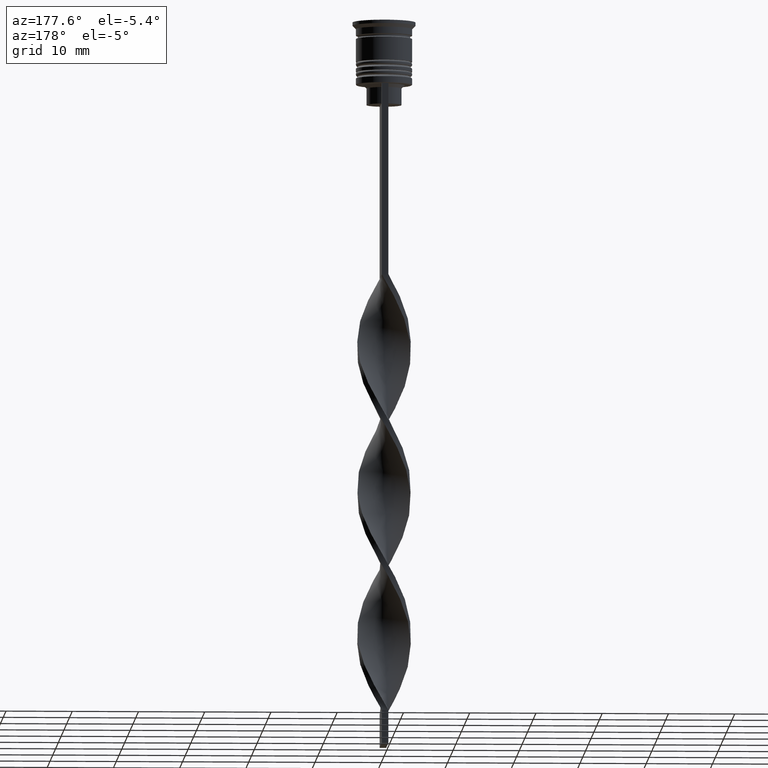
[diagram: clean part render]
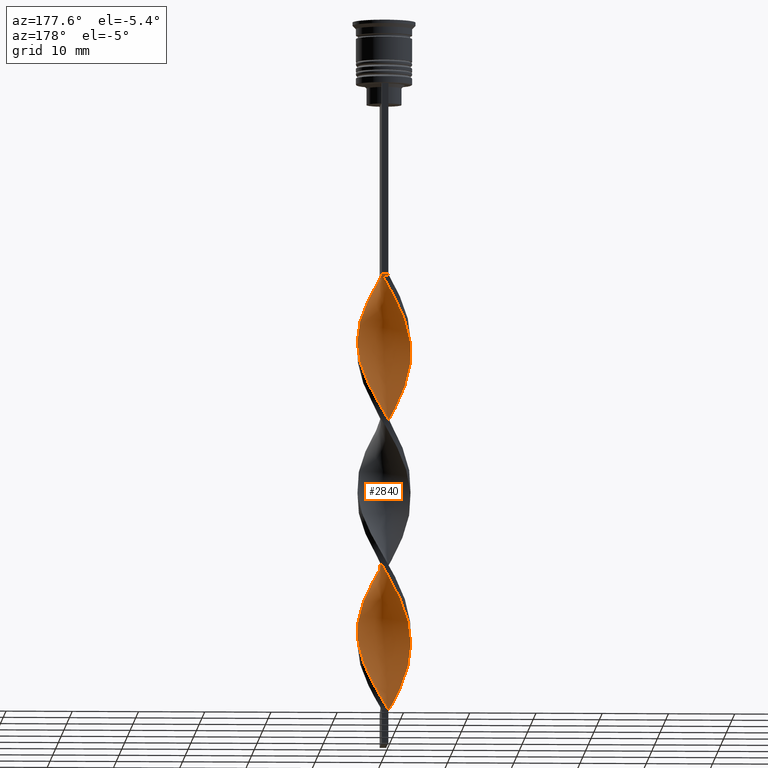
[diagram: same view with one face highlighted and labeled with its STEP entity id]
A machine part, auxiliary view. The second image highlights one B-rep face of the part: STEP entity #2840.
In plain terms, the highlighted face is a freeform B-spline surface patch.
Its self-contained STEP definition (entity closure, byte-faithful):
#7 = CARTESIAN_POINT ( 'NONE',  ( -3.575967836940203703, 1.860767053977795404, -67.26923076923077360 ) ) ;
#10 = CARTESIAN_POINT ( 'NONE',  ( -0.4717917484372087800, -4.003425101847986056, -80.80769230769230660 ) ) ;
#13 = CARTESIAN_POINT ( 'NONE',  ( 4.032828965577023972, 0.4752569063773701696, -73.19230769230769340 ) ) ;
#20 = CARTESIAN_POINT ( 'NONE',  ( 4.029378707462731413, 0.5036723384328412045, -49.50000000000000000 ) ) ;
#23 = CARTESIAN_POINT ( 'NONE',  ( -1.874433786711571459, -3.602232165184603652, -78.26923076923075939 ) ) ;
#37 = CARTESIAN_POINT ( 'NONE',  ( 4.032828965577023972, -0.4752569063773721680, -47.80769230769230660 ) ) ;
#40 = CARTESIAN_POINT ( 'NONE',  ( 3.791755605066377655, 1.453329977707796816, -95.19230769230769340 ) ) ;
#47 = CARTESIAN_POINT ( 'NONE',  ( -3.007903090209047559, 2.683750919871451757, -89.26923076923077360 ) ) ;
#54 = CARTESIAN_POINT ( 'NONE',  ( 3.575967836940203703, -1.860767053977795404, -45.26923076923076650 ) ) ;
#67 = CARTESIAN_POINT ( 'NONE',  ( 0.01431206711095556715, -4.060710991611130360, -81.65384615384616041 ) ) ;
#95 = CARTESIAN_POINT ( 'NONE',  ( -3.910567156264554534, 0.9785011580703200096, -48.65384615384615330 ) ) ;
#97 = CARTESIAN_POINT ( 'NONE',  ( -2.278235258877630010, 3.325604321804802588, -87.57692307692308020 ) ) ;
#128 = CARTESIAN_POINT ( 'NONE',  ( -3.350029810931577590, -2.294968160678091618, -54.57692307692308731 ) ) ;
#154 = CARTESIAN_POINT ( 'NONE',  ( 1.416164675348468904, -3.774185688634723590, -63.88461538461538680 ) ) ;
#155 = CARTESIAN_POINT ( 'NONE',  ( 0.9856879328890421066, -3.939289008388869640, -83.34615384615386802 ) ) ;
#162 = CARTESIAN_POINT ( 'NONE',  ( -3.333769449374405003, 2.318525361317902878, -90.11538461538462741 ) ) ;
#171 = CARTESIAN_POINT ( 'NONE',  ( -4.032828965577023084, -0.4752569063773717239, -51.19230769230768630 ) ) ;
#177 = CARTESIAN_POINT ( 'NONE',  ( 0.01431206711095789688, 4.060710991611130360, -83.34615384615386802 ) ) ;
#188 = CARTESIAN_POINT ( 'NONE',  ( 3.562762527220391107, -1.885927669512850846, -68.96153846153846700 ) ) ;
#198 = CARTESIAN_POINT ( 'NONE',  ( 0.9856879328890444381, 3.939289008388870084, -81.65384615384616041 ) ) ;
#215 = CARTESIAN_POINT ( 'NONE',  ( 1.899779198837471705, -3.588929866731989105, -41.03846153846154010 ) ) ;
#231 = CARTESIAN_POINT ( 'NONE',  ( 3.333769449374404559, -2.318525361317904654, -68.11538461538462741 ) ) ;
#252 = CARTESIAN_POINT ( 'NONE',  ( 0.4717917484372064485, 4.003425101847986056, -102.8076923076923208 ) ) ;
#256 = VERTEX_POINT ( 'NONE', #1911 ) ;
#260 = CARTESIAN_POINT ( 'NONE',  ( -3.333769449374404559, 2.318525361317903322, -46.11538461538462030 ) ) ;
#269 = CARTESIAN_POINT ( 'NONE',  ( 2.682036731043691002, 3.048976478424999303, -54.57692307692308731 ) ) ;
#272 = CARTESIAN_POINT ( 'NONE',  ( -1.416164675348472235, -3.774185688634722702, -79.11538461538461320 ) ) ;
#277 = CARTESIAN_POINT ( 'NONE',  ( 0.5000000000000000000, 4.000000000000000000, -82.50000000000000000 ) ) ;
#288 = CARTESIAN_POINT ( 'NONE',  ( -0.4999999999999994449, 4.000000000000000000, -60.50000000000000000 ) ) ;
#305 = CARTESIAN_POINT ( 'NONE',  ( 4.032828965577023972, -0.4752569063773721680, -91.80769230769230660 ) ) ;
#318 = CARTESIAN_POINT ( 'NONE',  ( 0.9578955639853689030, 3.946139212084843972, -57.96153846153846700 ) ) ;
#322 = CARTESIAN_POINT ( 'NONE',  ( 1.874433786711571015, 3.602232165184603652, -100.2692307692307878 ) ) ;
#333 = CARTESIAN_POINT ( 'NONE',  ( -1.416164675348472235, -3.774185688634722702, -79.11538461538461320 ) ) ;
#342 = FACE_OUTER_BOUND ( 'NONE', #2204, .T. ) ;
#362 = CARTESIAN_POINT ( 'NONE',  ( -3.007903090209047559, 2.683750919871451757, -45.26923076923076650 ) ) ;
#373 = CARTESIAN_POINT ( 'NONE',  ( 3.801905862948830706, -1.426565947277498525, -90.11538461538462741 ) ) ;
#387 = CARTESIAN_POINT ( 'NONE',  ( 2.703462203165886368, -3.029995166449922284, -86.73076923076922640 ) ) ;
#396 = CARTESIAN_POINT ( 'NONE',  ( -2.278235258877630010, 3.325604321804802588, -43.57692307692307310 ) ) ;
#405 = CARTESIAN_POINT ( 'NONE',  ( 3.917367414262926673, -0.9509114268274357906, -90.96153846153845279 ) ) ;
#412 = CARTESIAN_POINT ( 'NONE',  ( -0.5000000000000005551, -4.000000000000000000, -60.50000000000000000 ) ) ;
#427 = CARTESIAN_POINT ( 'NONE',  ( 4.031103836519877248, -0.01420771602773772055, -72.34615384615383959 ) ) ;
#428 = CARTESIAN_POINT ( 'NONE',  ( 4.031103836519878136, 0.01420771602773408804, -92.65384615384616041 ) ) ;
#433 = CARTESIAN_POINT ( 'NONE',  ( -3.917367414262927561, -0.9509114268274344584, -96.03846153846154721 ) ) ;
#440 = CARTESIAN_POINT ( 'NONE',  ( -3.350029810931577590, -2.294968160678091174, -54.57692307692308731 ) ) ;
#447 = CARTESIAN_POINT ( 'NONE',  ( 1.442733565863256961, -3.764109437560429150, -40.19230769230769340 ) ) ;
#454 = CARTESIAN_POINT ( 'NONE',  ( -0.5000000000000005551, -4.000000000000000000, -60.50000000000000000 ) ) ;
#461 = CARTESIAN_POINT ( 'NONE',  ( 3.350029810931576701, -2.294968160678092506, -44.42307692307691980 ) ) ;
#483 = CARTESIAN_POINT ( 'NONE',  ( -0.9578955639853675708, 3.946139212084844416, -85.03846153846153300 ) ) ;
#502 = CARTESIAN_POINT ( 'NONE',  ( -0.4717917484372050052, 4.003425101847986944, -84.19230769230769340 ) ) ;
#504 =( BOUNDED_SURFACE ( )  B_SPLINE_SURFACE ( 1, 2, ( 
 ( #631, #685, #1175, #3140, #2820, #3379, #396, #1501, #362, #2588, #2043, #2571, #95, #3155, #3392, #917, #2022, #2606, #3118, #128, #2337, #649, #1761, #955, #2059, #2893, #412, #1519, #3228, #1298, #1554, #2977, #1816, #1008, #2426, #231, #985, #2910, #738, #1330, #1862, #2444, #970, #2077, #1278, #1884, #2681, #2958, #2659, #1594, #3517, #198, #3252, #177, #502, #483, #2129, #1832, #2697, #1616, #2713, #162, #3171, #702, #2096, #2111, #2923, #1042, #433, #1538, #3208, #2412, #1259, #2643, #3459, #2375, #3194, #2394, #3479 ),
 ( #757, #722, #447, #215, #1311, #1847, #2938, #461, #1572, #3495, #2148, #1022, #779, #2466, #2497, #3273, #1684, #559, #1653, #1065, #3326, #1121, #1899, #815, #3558, #2229, #288, #2995, #3012, #593, #1389, #1630, #1972, #1410, #849, #1349, #1370, #1954, #1081, #3052, #2751, #2192, #576, #3291, #834, #544, #1916, #23, #272, #2482, #10, #1098, #797, #2783, #2211, #1423, #3309, #2173, #1938, #3035, #1668, #3066, #2767, #305, #3538, #2516, #1707, #40, #1136, #2246, #3341, #864, #2800, #322, #518, #2728, #252, #1202, #2852 ) ),
 .UNSPECIFIED., .F., .F., .F. ) 
 B_SPLINE_SURFACE_WITH_KNOTS ( ( 2, 2 ),
 ( 3, 2, 2, 2, 2, 2, 2, 2, 2, 2, 2, 2, 2, 2, 2, 2, 2, 2, 2, 2, 2, 2, 2, 2, 2, 2, 2, 2, 2, 2, 2, 2, 2, 2, 2, 2, 2, 2, 2, 3 ),
 ( 0.000000000000000000, 1.000000000000000000 ),
 ( 0.000000000000000000, 0.01923076923076923184, 0.03846153846153846367, 0.05769230769230769551, 0.07692307692307692735, 0.09615384615384615918, 0.1153846153846153910, 0.1346153846153846090, 0.1538461538461538547, 0.1730769230769230727, 0.1923076923076923184, 0.2115384615384615363, 0.2307692307692307820, 0.2500000000000000000, 0.2692307692307692180, 0.2884615384615384359, 0.3076923076923077094, 0.3269230769230769273, 0.3461538461538461453, 0.3653846153846153633, 0.3846153846153846367, 0.4038461538461538547, 0.4230769230769230727, 0.4423076923076922906, 0.4615384615384615641, 0.4807692307692307820, 0.5000000000000000000, 0.5192307692307692735, 0.5384615384615384359, 0.5576923076923077094, 0.5769230769230768718, 0.5961538461538461453, 0.6153846153846154188, 0.6346153846153845812, 0.6538461538461538547, 0.6730769230769231282, 0.6923076923076922906, 0.7115384615384615641, 0.7307692307692307265, 0.7500000000000000000 ),
 .UNSPECIFIED. ) 
 GEOMETRIC_REPRESENTATION_ITEM ( )  RATIONAL_B_SPLINE_SURFACE ( (
 ( 1.000000000000000000, 0.9927088740980539727, 1.000000000000000000, 0.9927088740980539727, 1.000000000000000000, 0.9927088740980539727, 1.000000000000000000, 0.9927088740980539727, 1.000000000000000000, 0.9927088740980539727, 1.000000000000000000, 0.9927088740980539727, 1.000000000000000000, 0.9927088740980539727, 1.000000000000000000, 0.9927088740980539727, 1.000000000000000000, 0.9927088740980539727, 1.000000000000000000, 0.9927088740980539727, 1.000000000000000000, 0.9927088740980539727, 1.000000000000000000, 0.9927088740980539727, 1.000000000000000000, 0.9927088740980539727, 1.000000000000000000, 0.9927088740980539727, 1.000000000000000000, 0.9927088740980539727, 1.000000000000000000, 0.9927088740980539727, 1.000000000000000000, 0.9927088740980539727, 1.000000000000000000, 0.9927088740980539727, 1.000000000000000000, 0.9927088740980539727, 1.000000000000000000, 0.9927088740980539727, 1.000000000000000000, 0.9927088740980539727, 1.000000000000000000, 0.9927088740980539727, 1.000000000000000000, 0.9927088740980539727, 1.000000000000000000, 0.9927088740980539727, 1.000000000000000000, 0.9927088740980539727, 1.000000000000000000, 0.9927088740980539727, 1.000000000000000000, 0.9927088740980539727, 1.000000000000000000, 0.9927088740980539727, 1.000000000000000000, 0.9927088740980539727, 1.000000000000000000, 0.9927088740980539727, 1.000000000000000000, 0.9927088740980539727, 1.000000000000000000, 0.9927088740980539727, 1.000000000000000000, 0.9927088740980539727, 1.000000000000000000, 0.9927088740980539727, 1.000000000000000000, 0.9927088740980539727, 1.000000000000000000, 0.9927088740980539727, 1.000000000000000000, 0.9927088740980539727, 1.000000000000000000, 0.9927088740980539727, 1.000000000000000000, 0.9927088740980539727, 1.000000000000000000),
 ( 1.000000000000000000, 0.9927088740980539727, 1.000000000000000000, 0.9927088740980539727, 1.000000000000000000, 0.9927088740980539727, 1.000000000000000000, 0.9927088740980539727, 1.000000000000000000, 0.9927088740980539727, 1.000000000000000000, 0.9927088740980539727, 1.000000000000000000, 0.9927088740980539727, 1.000000000000000000, 0.9927088740980539727, 1.000000000000000000, 0.9927088740980539727, 1.000000000000000000, 0.9927088740980539727, 1.000000000000000000, 0.9927088740980539727, 1.000000000000000000, 0.9927088740980539727, 1.000000000000000000, 0.9927088740980539727, 1.000000000000000000, 0.9927088740980539727, 1.000000000000000000, 0.9927088740980539727, 1.000000000000000000, 0.9927088740980539727, 1.000000000000000000, 0.9927088740980539727, 1.000000000000000000, 0.9927088740980539727, 1.000000000000000000, 0.9927088740980539727, 1.000000000000000000, 0.9927088740980539727, 1.000000000000000000, 0.9927088740980539727, 1.000000000000000000, 0.9927088740980539727, 1.000000000000000000, 0.9927088740980539727, 1.000000000000000000, 0.9927088740980539727, 1.000000000000000000, 0.9927088740980539727, 1.000000000000000000, 0.9927088740980539727, 1.000000000000000000, 0.9927088740980539727, 1.000000000000000000, 0.9927088740980539727, 1.000000000000000000, 0.9927088740980539727, 1.000000000000000000, 0.9927088740980539727, 1.000000000000000000, 0.9927088740980539727, 1.000000000000000000, 0.9927088740980539727, 1.000000000000000000, 0.9927088740980539727, 1.000000000000000000, 0.9927088740980539727, 1.000000000000000000, 0.9927088740980539727, 1.000000000000000000, 0.9927088740980539727, 1.000000000000000000, 0.9927088740980539727, 1.000000000000000000, 0.9927088740980539727, 1.000000000000000000, 0.9927088740980539727, 1.000000000000000000) ) ) 
 REPRESENTATION_ITEM ( '' )  SURFACE ( )  );
#518 = CARTESIAN_POINT ( 'NONE',  ( 1.416164675348469792, 3.774185688634723146, -101.1153846153846132 ) ) ;
#520 = EDGE_CURVE ( 'NONE', #2465, #523, #2496, .T. ) ;
#523 = VERTEX_POINT ( 'NONE', #2823 ) ;
#533 = VECTOR ( 'NONE', #2181, 1000.000000000000000 ) ;
#544 = CARTESIAN_POINT ( 'NONE',  ( -2.682036731043692335, -3.048976478424997527, -76.57692307692306599 ) ) ;
#551 = CARTESIAN_POINT ( 'NONE',  ( 1.899779198837473482, 3.588929866731988660, -79.96153846153846700 ) ) ;
#559 = CARTESIAN_POINT ( 'NONE',  ( 3.333769449374405447, 2.318525361317902433, -52.88461538461537970 ) ) ;
#573 = CARTESIAN_POINT ( 'NONE',  ( -3.910567156264555422, -0.9785011580703162348, -72.34615384615383959 ) ) ;
#576 = CARTESIAN_POINT ( 'NONE',  ( -3.562762527220391551, -1.885927669512849514, -74.03846153846153300 ) ) ;
#579 = CARTESIAN_POINT ( 'NONE',  ( -1.442733565863258516, -3.764109437560428262, -102.8076923076923208 ) ) ;
#589 = CARTESIAN_POINT ( 'NONE',  ( -2.703462203165885924, 3.029995166449922728, -64.73076923076922640 ) ) ;
#593 = CARTESIAN_POINT ( 'NONE',  ( -1.899779198837470373, 3.588929866731989549, -63.03846153846153300 ) ) ;
#608 = CARTESIAN_POINT ( 'NONE',  ( -1.874433786711571237, -3.602232165184603652, -78.26923076923077360 ) ) ;
#615 = CARTESIAN_POINT ( 'NONE',  ( -3.791755605066377655, 1.453329977707797260, -91.80769230769230660 ) ) ;
#631 = CARTESIAN_POINT ( 'NONE',  ( 0.5000000000000000000, 4.000000000000000000, -38.50000000000000000 ) ) ;
#633 = CARTESIAN_POINT ( 'NONE',  ( -2.703462203165886368, -3.029995166449921840, -100.2692307692307878 ) ) ;
#638 = CARTESIAN_POINT ( 'NONE',  ( 3.562762527220391551, 1.885927669512849070, -96.03846153846154721 ) ) ;
#649 = CARTESIAN_POINT ( 'NONE',  ( -2.703462203165886368, -3.029995166449921840, -56.26923076923076650 ) ) ;
#660 = CARTESIAN_POINT ( 'NONE',  ( 3.333769449374405447, 2.318525361317902878, -96.88461538461538680 ) ) ;
#685 = CARTESIAN_POINT ( 'NONE',  ( 0.01431206711095789688, 4.060710991611130360, -39.34615384615384670 ) ) ;
#702 = CARTESIAN_POINT ( 'NONE',  ( -3.791755605066377655, 1.453329977707797260, -91.80769230769230660 ) ) ;
#714 = CARTESIAN_POINT ( 'NONE',  ( -0.9578955639853675708, 3.946139212084843972, -41.03846153846154010 ) ) ;
#722 = CARTESIAN_POINT ( 'NONE',  ( 0.9856879328890421066, -3.939289008388870084, -39.34615384615384670 ) ) ;
#732 = CARTESIAN_POINT ( 'NONE',  ( -1.899779198837473038, -3.588929866731988660, -57.96153846153846700 ) ) ;
#738 = CARTESIAN_POINT ( 'NONE',  ( 3.910567156264554534, -0.9785011580703212308, -70.65384615384614619 ) ) ;
#739 = EDGE_CURVE ( 'NONE', #523, #2150, #2232, .T. ) ;
#757 = CARTESIAN_POINT ( 'NONE',  ( 0.5000000000000000000, -4.000000000000000000, -38.50000000000000000 ) ) ;
#779 = CARTESIAN_POINT ( 'NONE',  ( 4.031103836519878136, 0.01420771602773408804, -48.65384615384615330 ) ) ;
#797 = CARTESIAN_POINT ( 'NONE',  ( 0.5000000000000000000, -4.000000000000000000, -82.50000000000000000 ) ) ;
#802 = CARTESIAN_POINT ( 'NONE',  ( 3.026746007048732423, 2.662481663564005174, -77.42307692307693401 ) ) ;
#815 = CARTESIAN_POINT ( 'NONE',  ( 0.9578955639853687920, 3.946139212084844416, -57.96153846153846700 ) ) ;
#820 = CARTESIAN_POINT ( 'NONE',  ( 2.703462203165886812, 3.029995166449921840, -78.26923076923077360 ) ) ;
#831 = CARTESIAN_POINT ( 'NONE',  ( 1.899779198837471705, -3.588929866731989549, -41.03846153846154010 ) ) ;
#834 = CARTESIAN_POINT ( 'NONE',  ( -3.007903090209048891, -2.683750919871450868, -75.73076923076924061 ) ) ;
#840 = CARTESIAN_POINT ( 'NONE',  ( 0.4717917484372037285, -4.003425101847986944, -62.19230769230769340 ) ) ;
#846 = CARTESIAN_POINT ( 'NONE',  ( -3.026746007048730647, 2.662481663564007839, -65.57692307692308020 ) ) ;
#849 = CARTESIAN_POINT ( 'NONE',  ( -3.575967836940203703, 1.860767053977795404, -67.26923076923077360 ) ) ;
#855 = CARTESIAN_POINT ( 'NONE',  ( -0.4999999999999994449, 4.000000000000000000, -104.5000000000000142 ) ) ;
#861 = CARTESIAN_POINT ( 'NONE',  ( -2.278235258877631786, -3.325604321804800811, -77.42307692307693401 ) ) ;
#864 = CARTESIAN_POINT ( 'NONE',  ( 2.682036731043690558, 3.048976478424999303, -98.57692307692310862 ) ) ;
#876 = CARTESIAN_POINT ( 'NONE',  ( 1.416164675348469792, 3.774185688634723146, -57.11538461538461320 ) ) ;
#897 = CARTESIAN_POINT ( 'NONE',  ( 4.031103836519878136, 0.01420771602773408804, -48.65384615384615330 ) ) ;
#917 = CARTESIAN_POINT ( 'NONE',  ( -4.032828965577023084, -0.4752569063773717239, -51.19230769230768630 ) ) ;
#955 = CARTESIAN_POINT ( 'NONE',  ( -1.899779198837473038, -3.588929866731988216, -57.96153846153846700 ) ) ;
#970 = CARTESIAN_POINT ( 'NONE',  ( 3.917367414262927561, 0.9509114268274349024, -74.03846153846153300 ) ) ;
#978 = CARTESIAN_POINT ( 'NONE',  ( 3.350029810931578478, 2.294968160678088509, -76.57692307692306599 ) ) ;
#979 = CARTESIAN_POINT ( 'NONE',  ( 1.874433786711570793, 3.602232165184603652, -100.2692307692307878 ) ) ;
#985 = CARTESIAN_POINT ( 'NONE',  ( 3.562762527220391107, -1.885927669512850846, -68.96153846153846700 ) ) ;
#999 = CARTESIAN_POINT ( 'NONE',  ( 0.5000000000000000000, 4.000000000000000000, -38.50000000000000000 ) ) ;
#1008 = CARTESIAN_POINT ( 'NONE',  ( 2.682036731043688782, -3.048976478425001524, -66.42307692307694822 ) ) ;
#1022 = CARTESIAN_POINT ( 'NONE',  ( 4.032828965577023972, -0.4752569063773721680, -47.80769230769230660 ) ) ;
#1042 = CARTESIAN_POINT ( 'NONE',  ( -4.032828965577023084, -0.4752569063773717239, -95.19230769230769340 ) ) ;
#1065 = CARTESIAN_POINT ( 'NONE',  ( 2.682036731043690558, 3.048976478424999303, -54.57692307692308731 ) ) ;
#1081 = CARTESIAN_POINT ( 'NONE',  ( -4.031103836519878136, -0.01420771602773273322, -70.65384615384614619 ) ) ;
#1086 = CARTESIAN_POINT ( 'NONE',  ( -0.01431206711095876771, -4.060710991611130360, -61.34615384615383249 ) ) ;
#1098 = CARTESIAN_POINT ( 'NONE',  ( 0.01431206711095556715, -4.060710991611130360, -81.65384615384616041 ) ) ;
#1117 = CARTESIAN_POINT ( 'NONE',  ( 3.333769449374405447, 2.318525361317902878, -52.88461538461538680 ) ) ;
#1121 = CARTESIAN_POINT ( 'NONE',  ( 1.874433786711571015, 3.602232165184603652, -56.26923076923076650 ) ) ;
#1127 = CARTESIAN_POINT ( 'NONE',  ( -1.874433786711570349, 3.602232165184604096, -86.73076923076922640 ) ) ;
#1133 = CARTESIAN_POINT ( 'NONE',  ( -3.917367414262926673, 0.9509114268274362347, -68.96153846153846700 ) ) ;
#1136 = CARTESIAN_POINT ( 'NONE',  ( 3.562762527220391551, 1.885927669512849070, -96.03846153846154721 ) ) ;
#1142 = CARTESIAN_POINT ( 'NONE',  ( -2.682036731043690114, 3.048976478425000636, -88.42307692307691980 ) ) ;
#1149 = CARTESIAN_POINT ( 'NONE',  ( -1.442733565863255851, 3.764109437560429594, -62.19230769230769340 ) ) ;
#1159 = EDGE_CURVE ( 'NONE', #256, #2150, #1261, .T. ) ;
#1166 = CARTESIAN_POINT ( 'NONE',  ( 3.026746007048731091, -2.662481663564006951, -43.57692307692307310 ) ) ;
#1175 = CARTESIAN_POINT ( 'NONE',  ( -0.4717917484372050052, 4.003425101847986944, -40.19230769230769340 ) ) ;
#1191 = CARTESIAN_POINT ( 'NONE',  ( -4.029378707462731413, 0.5036723384328416486, -93.50000000000000000 ) ) ;
#1198 = CARTESIAN_POINT ( 'NONE',  ( 1.442733565863256961, -3.764109437560429150, -84.19230769230769340 ) ) ;
#1202 = CARTESIAN_POINT ( 'NONE',  ( -0.01431206711095605461, 4.060710991611130360, -103.6538461538461604 ) ) ;
#1218 = CARTESIAN_POINT ( 'NONE',  ( 3.350029810931576701, -2.294968160678092506, -88.42307692307691980 ) ) ;
#1251 = CARTESIAN_POINT ( 'NONE',  ( 3.917367414262927561, 0.9509114268274349024, -74.03846153846153300 ) ) ;
#1252 = CARTESIAN_POINT ( 'NONE',  ( 2.278235258877631342, 3.325604321804801256, -99.42307692307691980 ) ) ;
#1259 = CARTESIAN_POINT ( 'NONE',  ( -3.026746007048731979, -2.662481663564005618, -99.42307692307691980 ) ) ;
#1261 =( BOUNDED_CURVE ( )  B_SPLINE_CURVE ( 2, ( #3305, #2765, #2813, #831, #1701, #2748, #1166, #2527, #54, #1386, #2513, #37, #897, #20, #1718, #3323, #2278, #1117, #3064, #269, #2258, #1936, #876, #318, #2000, #1421, #1366, #1650, #1149, #1968, #2226, #589, #846, #2480, #7, #1952, #1133, #3049, #1986, #3081, #573, #3354, #1681, #2780, #2243, #3339, #861, #608, #333, #1437, #2541, #67, #2829, #155, #1198, #2617, #3111, #387, #2032, #1218, #2326, #373, #405, #2637, #428, #2293, #1533, #3454, #638, #660, #1477, #3165, #1252, #979, #3135, #3420, #3385, #2563, #2015 ),
 .UNSPECIFIED., .F., .T. ) 
 B_SPLINE_CURVE_WITH_KNOTS ( ( 3, 2, 2, 2, 2, 2, 2, 2, 2, 2, 2, 2, 2, 2, 2, 2, 2, 2, 2, 2, 2, 2, 2, 2, 2, 2, 2, 2, 2, 2, 2, 2, 2, 2, 2, 2, 2, 2, 2, 3 ),
 ( 0.000000000000000000, 0.01923076923076923184, 0.03846153846153846367, 0.05769230769230768857, 0.07692307692307692735, 0.09615384615384615918, 0.1153846153846153771, 0.1346153846153846090, 0.1538461538461538547, 0.1730769230769230449, 0.1923076923076923184, 0.2115384615384615363, 0.2307692307692307543, 0.2500000000000000000, 0.2692307692307692180, 0.2884615384615384359, 0.3076923076923077094, 0.3269230769230769273, 0.3461538461538460898, 0.3653846153846153633, 0.3846153846153846367, 0.4038461538461539102, 0.4230769230769230727, 0.4423076923076922906, 0.4615384615384615086, 0.4807692307692307820, 0.5000000000000000000, 0.5192307692307692735, 0.5384615384615384359, 0.5576923076923077094, 0.5769230769230768718, 0.5961538461538461453, 0.6153846153846154188, 0.6346153846153845812, 0.6538461538461538547, 0.6730769230769230171, 0.6923076923076921796, 0.7115384615384615641, 0.7307692307692307265, 0.7500000000000000000 ),
 .UNSPECIFIED. ) 
 CURVE ( )  GEOMETRIC_REPRESENTATION_ITEM ( )  RATIONAL_B_SPLINE_CURVE ( ( 1.000000000000000000, 0.9927088740980539727, 1.000000000000000000, 0.9927088740980539727, 1.000000000000000000, 0.9927088740980539727, 1.000000000000000000, 0.9927088740980539727, 1.000000000000000000, 0.9927088740980539727, 1.000000000000000000, 0.9927088740980539727, 1.000000000000000000, 0.9927088740980539727, 1.000000000000000000, 0.9927088740980539727, 1.000000000000000000, 0.9927088740980539727, 1.000000000000000000, 0.9927088740980539727, 1.000000000000000000, 0.9927088740980539727, 1.000000000000000000, 0.9927088740980539727, 1.000000000000000000, 0.9927088740980539727, 1.000000000000000000, 0.9927088740980539727, 1.000000000000000000, 0.9927088740980539727, 1.000000000000000000, 0.9927088740980539727, 1.000000000000000000, 0.9927088740980539727, 1.000000000000000000, 0.9927088740980539727, 1.000000000000000000, 0.9927088740980539727, 1.000000000000000000, 0.9927088740980539727, 1.000000000000000000, 0.9927088740980539727, 1.000000000000000000, 0.9927088740980539727, 1.000000000000000000, 0.9927088740980539727, 1.000000000000000000, 0.9927088740980539727, 1.000000000000000000, 0.9927088740980539727, 1.000000000000000000, 0.9927088740980539727, 1.000000000000000000, 0.9927088740980539727, 1.000000000000000000, 0.9927088740980539727, 1.000000000000000000, 0.9927088740980539727, 1.000000000000000000, 0.9927088740980539727, 1.000000000000000000, 0.9927088740980539727, 1.000000000000000000, 0.9927088740980539727, 1.000000000000000000, 0.9927088740980539727, 1.000000000000000000, 0.9927088740980539727, 1.000000000000000000, 0.9927088740980539727, 1.000000000000000000, 0.9927088740980539727, 1.000000000000000000, 0.9927088740980539727, 1.000000000000000000, 0.9927088740980539727, 1.000000000000000000, 0.9927088740980539727, 1.000000000000000000 ) ) 
 REPRESENTATION_ITEM ( '' )  );
#1278 = CARTESIAN_POINT ( 'NONE',  ( 3.575967836940204148, 1.860767053977794072, -75.73076923076924061 ) ) ;
#1298 = CARTESIAN_POINT ( 'NONE',  ( 0.9578955639853662385, -3.946139212084844416, -63.03846153846153300 ) ) ;
#1311 = CARTESIAN_POINT ( 'NONE',  ( 2.301620701001678704, -3.309462516590955250, -41.88461538461537970 ) ) ;
#1330 = CARTESIAN_POINT ( 'NONE',  ( 4.029378707462731413, -0.5036723384328422037, -71.50000000000000000 ) ) ;
#1337 = CARTESIAN_POINT ( 'NONE',  ( -3.917367414262927561, -0.9509114268274344584, -52.03846153846154010 ) ) ;
#1340 = LINE ( 'NONE', #1929, #533 ) ;
#1349 = CARTESIAN_POINT ( 'NONE',  ( -3.801905862948829373, 1.426565947277500745, -68.11538461538462741 ) ) ;
#1356 = CARTESIAN_POINT ( 'NONE',  ( -3.791755605066377655, 1.453329977707797260, -47.80769230769230660 ) ) ;
#1366 = CARTESIAN_POINT ( 'NONE',  ( -0.4999999999999994449, 4.000000000000000000, -60.50000000000000000 ) ) ;
#1370 = CARTESIAN_POINT ( 'NONE',  ( -3.917367414262926673, 0.9509114268274362347, -68.96153846153846700 ) ) ;
#1377 = CARTESIAN_POINT ( 'NONE',  ( 4.029378707462731413, -0.5036723384328422037, -71.50000000000001421 ) ) ;
#1386 = CARTESIAN_POINT ( 'NONE',  ( 3.801905862948830706, -1.426565947277498525, -46.11538461538462030 ) ) ;
#1389 = CARTESIAN_POINT ( 'NONE',  ( -2.301620701001678704, 3.309462516590955250, -63.88461538461538680 ) ) ;
#1410 = CARTESIAN_POINT ( 'NONE',  ( -3.350029810931575813, 2.294968160678093394, -66.42307692307694822 ) ) ;
#1413 = CARTESIAN_POINT ( 'NONE',  ( -3.026746007048731979, -2.662481663564005618, -99.42307692307691980 ) ) ;
#1421 = CARTESIAN_POINT ( 'NONE',  ( -0.01431206711095605461, 4.060710991611130360, -59.65384615384615330 ) ) ;
#1423 = CARTESIAN_POINT ( 'NONE',  ( 1.899779198837471705, -3.588929866731989105, -85.03846153846153300 ) ) ;
#1429 = CARTESIAN_POINT ( 'NONE',  ( -3.801905862948830261, -1.426565947277498081, -96.88461538461538680 ) ) ;
#1437 = CARTESIAN_POINT ( 'NONE',  ( -0.9578955639853693471, -3.946139212084843972, -79.96153846153846700 ) ) ;
#1446 = CARTESIAN_POINT ( 'NONE',  ( -4.031103836519878136, 0.01420771602773549663, -94.34615384615385381 ) ) ;
#1477 = CARTESIAN_POINT ( 'NONE',  ( 3.007903090209048003, 2.683750919871450868, -97.73076923076922640 ) ) ;
#1495 = ORIENTED_EDGE ( 'NONE', *, *, #739, .F. ) ;
#1501 = CARTESIAN_POINT ( 'NONE',  ( -2.682036731043689670, 3.048976478425000636, -44.42307692307691980 ) ) ;
#1519 = CARTESIAN_POINT ( 'NONE',  ( -0.01431206711095876771, -4.060710991611130360, -61.34615384615383959 ) ) ;
#1525 = ORIENTED_EDGE ( 'NONE', *, *, #520, .F. ) ;
#1533 = CARTESIAN_POINT ( 'NONE',  ( 3.910567156264554534, 0.9785011580703186773, -94.34615384615385381 ) ) ;
#1538 = CARTESIAN_POINT ( 'NONE',  ( -3.801905862948830261, -1.426565947277498081, -96.88461538461538680 ) ) ;
#1547 = CARTESIAN_POINT ( 'NONE',  ( -3.562762527220391107, 1.885927669512850402, -46.96153846153845990 ) ) ;
#1554 = CARTESIAN_POINT ( 'NONE',  ( 1.416164675348468904, -3.774185688634723590, -63.88461538461538680 ) ) ;
#1562 = CARTESIAN_POINT ( 'NONE',  ( 2.278235258877629565, -3.325604321804802588, -65.57692307692308020 ) ) ;
#1572 = CARTESIAN_POINT ( 'NONE',  ( 3.575967836940203703, -1.860767053977795404, -45.26923076923076650 ) ) ;
#1594 = CARTESIAN_POINT ( 'NONE',  ( 1.899779198837473482, 3.588929866731988216, -79.96153846153846700 ) ) ;
#1616 = CARTESIAN_POINT ( 'NONE',  ( -2.682036731043689670, 3.048976478425000636, -88.42307692307693401 ) ) ;
#1630 = CARTESIAN_POINT ( 'NONE',  ( -2.703462203165885924, 3.029995166449922728, -64.73076923076921219 ) ) ;
#1638 = CARTESIAN_POINT ( 'NONE',  ( -0.4717917484372050052, 4.003425101847986944, -40.19230769230769340 ) ) ;
#1650 = CARTESIAN_POINT ( 'NONE',  ( -0.9856879328890412184, 3.939289008388869640, -61.34615384615383249 ) ) ;
#1653 = CARTESIAN_POINT ( 'NONE',  ( 3.007903090209048003, 2.683750919871450868, -53.73076923076923350 ) ) ;
#1658 = CARTESIAN_POINT ( 'NONE',  ( 1.442733565863260736, 3.764109437560427818, -80.80769230769230660 ) ) ;
#1668 = CARTESIAN_POINT ( 'NONE',  ( 3.575967836940203703, -1.860767053977795404, -89.26923076923077360 ) ) ;
#1674 = CARTESIAN_POINT ( 'NONE',  ( -3.910567156264554534, 0.9785011580703200096, -92.65384615384616041 ) ) ;
#1681 = CARTESIAN_POINT ( 'NONE',  ( -3.562762527220391551, -1.885927669512849514, -74.03846153846153300 ) ) ;
#1684 = CARTESIAN_POINT ( 'NONE',  ( 3.562762527220391551, 1.885927669512849070, -52.03846153846154010 ) ) ;
#1701 = CARTESIAN_POINT ( 'NONE',  ( 2.301620701001678704, -3.309462516590955250, -41.88461538461537970 ) ) ;
#1707 = CARTESIAN_POINT ( 'NONE',  ( 3.910567156264554534, 0.9785011580703186773, -94.34615384615385381 ) ) ;
#1718 = CARTESIAN_POINT ( 'NONE',  ( 3.910567156264554534, 0.9785011580703186773, -50.34615384615384670 ) ) ;
#1743 = CARTESIAN_POINT ( 'NONE',  ( -3.333769449374404559, 2.318525361317903322, -90.11538461538462741 ) ) ;
#1761 = CARTESIAN_POINT ( 'NONE',  ( -2.301620701001679148, -3.309462516590954806, -57.11538461538461320 ) ) ;
#1769 = CARTESIAN_POINT ( 'NONE',  ( 0.5000000000000000000, 4.000000000000000000, -38.50000000000000000 ) ) ;
#1816 = CARTESIAN_POINT ( 'NONE',  ( 2.278235258877629565, -3.325604321804802588, -65.57692307692308020 ) ) ;
#1825 = CARTESIAN_POINT ( 'NONE',  ( -2.682036731043690114, 3.048976478425000636, -44.42307692307692690 ) ) ;
#1832 = CARTESIAN_POINT ( 'NONE',  ( -1.874433786711570571, 3.602232165184604096, -86.73076923076922640 ) ) ;
#1840 = CARTESIAN_POINT ( 'NONE',  ( -3.007903090209047559, 2.683750919871451757, -45.26923076923076650 ) ) ;
#1847 = CARTESIAN_POINT ( 'NONE',  ( 2.703462203165886368, -3.029995166449922284, -42.73076923076923350 ) ) ;
#1862 = CARTESIAN_POINT ( 'NONE',  ( 4.031103836519877248, -0.01420771602773772055, -72.34615384615383959 ) ) ;
#1884 = CARTESIAN_POINT ( 'NONE',  ( 3.350029810931578478, 2.294968160678088953, -76.57692307692306599 ) ) ;
#1899 = CARTESIAN_POINT ( 'NONE',  ( 1.416164675348469792, 3.774185688634723146, -57.11538461538461320 ) ) ;
#1911 = CARTESIAN_POINT ( 'NONE',  ( 0.5000000000000000000, -4.000000000000000000, -38.50000000000000000 ) ) ;
#1916 = CARTESIAN_POINT ( 'NONE',  ( -2.278235258877631786, -3.325604321804800811, -77.42307692307693401 ) ) ;
#1926 = CARTESIAN_POINT ( 'NONE',  ( -1.874433786711570349, 3.602232165184604096, -42.73076923076923350 ) ) ;
#1929 = CARTESIAN_POINT ( 'NONE',  ( 0.5000000000000000000, -4.000000000000000000, -38.50000000000000000 ) ) ;
#1936 = CARTESIAN_POINT ( 'NONE',  ( 1.874433786711570793, 3.602232165184603652, -56.26923076923076650 ) ) ;
#1938 = CARTESIAN_POINT ( 'NONE',  ( 3.026746007048731091, -2.662481663564006951, -87.57692307692308020 ) ) ;
#1945 = CARTESIAN_POINT ( 'NONE',  ( 1.874433786711570127, -3.602232165184604540, -64.73076923076922640 ) ) ;
#1952 = CARTESIAN_POINT ( 'NONE',  ( -3.801905862948829373, 1.426565947277500745, -68.11538461538461320 ) ) ;
#1954 = CARTESIAN_POINT ( 'NONE',  ( -4.032828965577023084, 0.4752569063773718350, -69.80769230769230660 ) ) ;
#1960 = CARTESIAN_POINT ( 'NONE',  ( -1.416164675348469126, 3.774185688634723590, -85.88461538461538680 ) ) ;
#1968 = CARTESIAN_POINT ( 'NONE',  ( -1.899779198837470373, 3.588929866731989993, -63.03846153846154010 ) ) ;
#1972 = CARTESIAN_POINT ( 'NONE',  ( -3.026746007048730647, 2.662481663564007839, -65.57692307692308020 ) ) ;
#1986 = CARTESIAN_POINT ( 'NONE',  ( -4.031103836519878136, -0.01420771602773273322, -70.65384615384614619 ) ) ;
#1994 = CARTESIAN_POINT ( 'NONE',  ( -0.9856879328890441050, -3.939289008388869640, -103.6538461538461462 ) ) ;
#2000 = CARTESIAN_POINT ( 'NONE',  ( 0.4717917484372064485, 4.003425101847986056, -58.80769230769231370 ) ) ;
#2015 = CARTESIAN_POINT ( 'NONE',  ( -0.4999999999999994449, 4.000000000000000000, -104.5000000000000142 ) ) ;
#2022 = CARTESIAN_POINT ( 'NONE',  ( -3.917367414262927561, -0.9509114268274344584, -52.03846153846154010 ) ) ;
#2032 = CARTESIAN_POINT ( 'NONE',  ( 3.026746007048731091, -2.662481663564006951, -87.57692307692308020 ) ) ;
#2043 = CARTESIAN_POINT ( 'NONE',  ( -3.562762527220391107, 1.885927669512850402, -46.96153846153845990 ) ) ;
#2059 = CARTESIAN_POINT ( 'NONE',  ( -1.442733565863258516, -3.764109437560428262, -58.80769230769231370 ) ) ;
#2077 = CARTESIAN_POINT ( 'NONE',  ( 3.801905862948831150, 1.426565947277496083, -74.88461538461538680 ) ) ;
#2096 = CARTESIAN_POINT ( 'NONE',  ( -3.910567156264554534, 0.9785011580703200096, -92.65384615384616041 ) ) ;
#2103 = CARTESIAN_POINT ( 'NONE',  ( -3.910567156264554534, 0.9785011580703200096, -48.65384615384615330 ) ) ;
#2111 = CARTESIAN_POINT ( 'NONE',  ( -4.029378707462731413, 0.5036723384328416486, -93.49999999999998579 ) ) ;
#2129 = CARTESIAN_POINT ( 'NONE',  ( -1.416164675348469126, 3.774185688634723590, -85.88461538461538680 ) ) ;
#2148 = CARTESIAN_POINT ( 'NONE',  ( 3.917367414262926673, -0.9509114268274357906, -46.96153846153845990 ) ) ;
#2150 = VERTEX_POINT ( 'NONE', #855 ) ;
#2173 = CARTESIAN_POINT ( 'NONE',  ( 2.703462203165886368, -3.029995166449922284, -86.73076923076922640 ) ) ;
#2179 = CARTESIAN_POINT ( 'NONE',  ( 3.791755605066377655, -1.453329977707796816, -69.80769230769230660 ) ) ;
#2181 = DIRECTION ( 'NONE',  ( 0.000000000000000000, 1.000000000000000000, 0.000000000000000000 ) ) ;
#2192 = CARTESIAN_POINT ( 'NONE',  ( -3.791755605066378987, -1.453329977707795484, -73.19230769230770761 ) ) ;
#2198 = ORIENTED_EDGE ( 'NONE', *, *, #3084, .F. ) ;
#2200 = CARTESIAN_POINT ( 'NONE',  ( 0.9578955639853662385, -3.946139212084843972, -63.03846153846154010 ) ) ;
#2204 = EDGE_LOOP ( 'NONE', ( #2198, #3390, #1495, #1525 ) ) ;
#2211 = CARTESIAN_POINT ( 'NONE',  ( 1.442733565863256961, -3.764109437560429150, -84.19230769230769340 ) ) ;
#2217 = CARTESIAN_POINT ( 'NONE',  ( 0.01431206711095789862, 4.060710991611130360, -39.34615384615384670 ) ) ;
#2226 = CARTESIAN_POINT ( 'NONE',  ( -2.301620701001678704, 3.309462516590955250, -63.88461538461538680 ) ) ;
#2229 = CARTESIAN_POINT ( 'NONE',  ( -0.01431206711095605461, 4.060710991611130360, -59.65384615384615330 ) ) ;
#2232 = B_SPLINE_CURVE_WITH_KNOTS ( 'NONE', 3,
 ( #2248, #2546, #3343, #3070 ),
 .UNSPECIFIED., .F., .F.,
 ( 4, 4 ),
 ( 0.000000000000000000, 1.000000000000000000 ),
 .UNSPECIFIED. ) ;
#2237 = CARTESIAN_POINT ( 'NONE',  ( -3.562762527220391107, 1.885927669512850402, -90.96153846153845279 ) ) ;
#2243 = CARTESIAN_POINT ( 'NONE',  ( -3.007903090209048891, -2.683750919871450868, -75.73076923076924061 ) ) ;
#2246 = CARTESIAN_POINT ( 'NONE',  ( 3.333769449374405447, 2.318525361317902433, -96.88461538461538680 ) ) ;
#2248 = CARTESIAN_POINT ( 'NONE',  ( -0.5000000000000005551, -4.000000000000000000, -104.5000000000000142 ) ) ;
#2251 = CARTESIAN_POINT ( 'NONE',  ( -2.301620701001679148, -3.309462516590954806, -101.1153846153846132 ) ) ;
#2258 = CARTESIAN_POINT ( 'NONE',  ( 2.278235258877631342, 3.325604321804801256, -55.42307692307691980 ) ) ;
#2266 = CARTESIAN_POINT ( 'NONE',  ( 0.01431206711095789862, 4.060710991611130360, -83.34615384615386802 ) ) ;
#2278 = CARTESIAN_POINT ( 'NONE',  ( 3.562762527220391551, 1.885927669512849070, -52.03846153846154010 ) ) ;
#2293 = CARTESIAN_POINT ( 'NONE',  ( 4.029378707462731413, 0.5036723384328412045, -93.50000000000000000 ) ) ;
#2300 = CARTESIAN_POINT ( 'NONE',  ( -1.899779198837473038, -3.588929866731988660, -101.9615384615384670 ) ) ;
#2326 = CARTESIAN_POINT ( 'NONE',  ( 3.575967836940203703, -1.860767053977795404, -89.26923076923077360 ) ) ;
#2337 = CARTESIAN_POINT ( 'NONE',  ( -3.026746007048731979, -2.662481663564005618, -55.42307692307691980 ) ) ;
#2367 = CARTESIAN_POINT ( 'NONE',  ( -3.026746007048731979, -2.662481663564005618, -55.42307692307691980 ) ) ;
#2375 = CARTESIAN_POINT ( 'NONE',  ( -1.899779198837473038, -3.588929866731988216, -101.9615384615384670 ) ) ;
#2383 = CARTESIAN_POINT ( 'NONE',  ( -2.301620701001679148, -3.309462516590954806, -57.11538461538461320 ) ) ;
#2394 = CARTESIAN_POINT ( 'NONE',  ( -0.9856879328890439940, -3.939289008388870084, -103.6538461538461604 ) ) ;
#2412 = CARTESIAN_POINT ( 'NONE',  ( -3.350029810931577590, -2.294968160678091618, -98.57692307692310862 ) ) ;
#2426 = CARTESIAN_POINT ( 'NONE',  ( 3.007903090209047559, -2.683750919871451757, -67.26923076923077360 ) ) ;
#2444 = CARTESIAN_POINT ( 'NONE',  ( 4.032828965577023972, 0.4752569063773701696, -73.19230769230770761 ) ) ;
#2455 = CARTESIAN_POINT ( 'NONE',  ( 3.333769449374404115, -2.318525361317905098, -68.11538461538461320 ) ) ;
#2465 = VERTEX_POINT ( 'NONE', #1769 ) ;
#2466 = CARTESIAN_POINT ( 'NONE',  ( 4.029378707462731413, 0.5036723384328412045, -49.50000000000000000 ) ) ;
#2473 = CARTESIAN_POINT ( 'NONE',  ( -4.031103836519878136, 0.01420771602773549663, -50.34615384615384670 ) ) ;
#2480 = CARTESIAN_POINT ( 'NONE',  ( -3.350029810931575813, 2.294968160678093394, -66.42307692307693401 ) ) ;
#2482 = CARTESIAN_POINT ( 'NONE',  ( -0.9578955639853692361, -3.946139212084844416, -79.96153846153846700 ) ) ;
#2486 = CARTESIAN_POINT ( 'NONE',  ( -1.416164675348469126, 3.774185688634723590, -41.88461538461537970 ) ) ;
#2496 =( BOUNDED_CURVE ( )  B_SPLINE_CURVE ( 2, ( #999, #2217, #1638, #714, #2486, #1926, #2740, #1825, #1840, #260, #1547, #1356, #2103, #2652, #2473, #171, #1337, #3201, #3317, #440, #2367, #2916, #2383, #732, #2931, #3562, #454, #1086, #840, #2200, #154, #1945, #1562, #3297, #2669, #2455, #188, #2179, #3279, #1377, #427, #13, #1251, #3548, #3453, #978, #802, #820, #3023, #551, #1658, #2757, #277, #2266, #3330, #2505, #1960, #1127, #97, #1142, #47, #1743, #2237, #615, #1674, #1191, #1446, #2550, #3057, #1429, #2534, #3394, #1413, #633, #2251, #2300, #579, #1994, #2772 ),
 .UNSPECIFIED., .F., .T. ) 
 B_SPLINE_CURVE_WITH_KNOTS ( ( 3, 2, 2, 2, 2, 2, 2, 2, 2, 2, 2, 2, 2, 2, 2, 2, 2, 2, 2, 2, 2, 2, 2, 2, 2, 2, 2, 2, 2, 2, 2, 2, 2, 2, 2, 2, 2, 2, 2, 3 ),
 ( 0.000000000000000000, 0.01923076923076923184, 0.03846153846153846367, 0.05769230769230768857, 0.07692307692307692735, 0.09615384615384615918, 0.1153846153846153771, 0.1346153846153846090, 0.1538461538461538547, 0.1730769230769230449, 0.1923076923076923184, 0.2115384615384615363, 0.2307692307692307543, 0.2500000000000000000, 0.2692307692307692180, 0.2884615384615384359, 0.3076923076923077094, 0.3269230769230769273, 0.3461538461538460898, 0.3653846153846153633, 0.3846153846153846367, 0.4038461538461539102, 0.4230769230769230727, 0.4423076923076922906, 0.4615384615384615086, 0.4807692307692307820, 0.5000000000000000000, 0.5192307692307692735, 0.5384615384615384359, 0.5576923076923077094, 0.5769230769230768718, 0.5961538461538461453, 0.6153846153846154188, 0.6346153846153845812, 0.6538461538461538547, 0.6730769230769230171, 0.6923076923076921796, 0.7115384615384615641, 0.7307692307692307265, 0.7500000000000000000 ),
 .UNSPECIFIED. ) 
 CURVE ( )  GEOMETRIC_REPRESENTATION_ITEM ( )  RATIONAL_B_SPLINE_CURVE ( ( 1.000000000000000000, 0.9927088740980539727, 1.000000000000000000, 0.9927088740980539727, 1.000000000000000000, 0.9927088740980539727, 1.000000000000000000, 0.9927088740980539727, 1.000000000000000000, 0.9927088740980539727, 1.000000000000000000, 0.9927088740980539727, 1.000000000000000000, 0.9927088740980539727, 1.000000000000000000, 0.9927088740980539727, 1.000000000000000000, 0.9927088740980539727, 1.000000000000000000, 0.9927088740980539727, 1.000000000000000000, 0.9927088740980539727, 1.000000000000000000, 0.9927088740980539727, 1.000000000000000000, 0.9927088740980539727, 1.000000000000000000, 0.9927088740980539727, 1.000000000000000000, 0.9927088740980539727, 1.000000000000000000, 0.9927088740980539727, 1.000000000000000000, 0.9927088740980539727, 1.000000000000000000, 0.9927088740980539727, 1.000000000000000000, 0.9927088740980539727, 1.000000000000000000, 0.9927088740980539727, 1.000000000000000000, 0.9927088740980539727, 1.000000000000000000, 0.9927088740980539727, 1.000000000000000000, 0.9927088740980539727, 1.000000000000000000, 0.9927088740980539727, 1.000000000000000000, 0.9927088740980539727, 1.000000000000000000, 0.9927088740980539727, 1.000000000000000000, 0.9927088740980539727, 1.000000000000000000, 0.9927088740980539727, 1.000000000000000000, 0.9927088740980539727, 1.000000000000000000, 0.9927088740980539727, 1.000000000000000000, 0.9927088740980539727, 1.000000000000000000, 0.9927088740980539727, 1.000000000000000000, 0.9927088740980539727, 1.000000000000000000, 0.9927088740980539727, 1.000000000000000000, 0.9927088740980539727, 1.000000000000000000, 0.9927088740980539727, 1.000000000000000000, 0.9927088740980539727, 1.000000000000000000, 0.9927088740980539727, 1.000000000000000000, 0.9927088740980539727, 1.000000000000000000 ) ) 
 REPRESENTATION_ITEM ( '' )  );
#2497 = CARTESIAN_POINT ( 'NONE',  ( 3.910567156264554534, 0.9785011580703186773, -50.34615384615384670 ) ) ;
#2505 = CARTESIAN_POINT ( 'NONE',  ( -0.9578955639853675708, 3.946139212084843972, -85.03846153846153300 ) ) ;
#2513 = CARTESIAN_POINT ( 'NONE',  ( 3.917367414262926673, -0.9509114268274357906, -46.96153846153845990 ) ) ;
#2516 = CARTESIAN_POINT ( 'NONE',  ( 4.029378707462731413, 0.5036723384328412045, -93.49999999999998579 ) ) ;
#2527 = CARTESIAN_POINT ( 'NONE',  ( 3.350029810931576701, -2.294968160678092506, -44.42307692307692690 ) ) ;
#2534 = CARTESIAN_POINT ( 'NONE',  ( -3.575967836940204148, -1.860767053977794516, -97.73076923076922640 ) ) ;
#2541 = CARTESIAN_POINT ( 'NONE',  ( -0.4717917484372087800, -4.003425101847986056, -80.80769230769230660 ) ) ;
#2546 = CARTESIAN_POINT ( 'NONE',  ( -0.5000000000000002220, -1.333333333333333481, -104.5000000000000142 ) ) ;
#2550 = CARTESIAN_POINT ( 'NONE',  ( -4.032828965577023084, -0.4752569063773717239, -95.19230769230769340 ) ) ;
#2563 = CARTESIAN_POINT ( 'NONE',  ( -0.01431206711095605461, 4.060710991611130360, -103.6538461538461462 ) ) ;
#2571 = CARTESIAN_POINT ( 'NONE',  ( -3.791755605066377655, 1.453329977707797260, -47.80769230769230660 ) ) ;
#2588 = CARTESIAN_POINT ( 'NONE',  ( -3.333769449374405003, 2.318525361317902878, -46.11538461538462741 ) ) ;
#2606 = CARTESIAN_POINT ( 'NONE',  ( -3.801905862948830261, -1.426565947277498081, -52.88461538461537970 ) ) ;
#2617 = CARTESIAN_POINT ( 'NONE',  ( 1.899779198837471705, -3.588929866731989549, -85.03846153846153300 ) ) ;
#2637 = CARTESIAN_POINT ( 'NONE',  ( 4.032828965577023972, -0.4752569063773721680, -91.80769230769230660 ) ) ;
#2643 = CARTESIAN_POINT ( 'NONE',  ( -2.703462203165886368, -3.029995166449921840, -100.2692307692307878 ) ) ;
#2652 = CARTESIAN_POINT ( 'NONE',  ( -4.029378707462731413, 0.5036723384328416486, -49.50000000000000000 ) ) ;
#2659 = CARTESIAN_POINT ( 'NONE',  ( 2.301620701001681368, 3.309462516590953474, -79.11538461538461320 ) ) ;
#2669 = CARTESIAN_POINT ( 'NONE',  ( 3.007903090209047559, -2.683750919871451757, -67.26923076923077360 ) ) ;
#2681 = CARTESIAN_POINT ( 'NONE',  ( 3.026746007048732423, 2.662481663564005174, -77.42307692307693401 ) ) ;
#2697 = CARTESIAN_POINT ( 'NONE',  ( -2.278235258877630010, 3.325604321804802588, -87.57692307692308020 ) ) ;
#2713 = CARTESIAN_POINT ( 'NONE',  ( -3.007903090209047559, 2.683750919871451757, -89.26923076923077360 ) ) ;
#2728 = CARTESIAN_POINT ( 'NONE',  ( 0.9578955639853687920, 3.946139212084844416, -101.9615384615384670 ) ) ;
#2740 = CARTESIAN_POINT ( 'NONE',  ( -2.278235258877630010, 3.325604321804802588, -43.57692307692307310 ) ) ;
#2748 = CARTESIAN_POINT ( 'NONE',  ( 2.703462203165886368, -3.029995166449922284, -42.73076923076923350 ) ) ;
#2751 = CARTESIAN_POINT ( 'NONE',  ( -3.910567156264555422, -0.9785011580703162348, -72.34615384615383959 ) ) ;
#2757 = CARTESIAN_POINT ( 'NONE',  ( 0.9856879328890445491, 3.939289008388869640, -81.65384615384616041 ) ) ;
#2765 = CARTESIAN_POINT ( 'NONE',  ( 0.9856879328890421066, -3.939289008388869640, -39.34615384615384670 ) ) ;
#2767 = CARTESIAN_POINT ( 'NONE',  ( 3.917367414262926673, -0.9509114268274357906, -90.96153846153845279 ) ) ;
#2772 = CARTESIAN_POINT ( 'NONE',  ( -0.5000000000000005551, -4.000000000000000000, -104.5000000000000142 ) ) ;
#2780 = CARTESIAN_POINT ( 'NONE',  ( -3.333769449374406335, -2.318525361317901101, -74.88461538461538680 ) ) ;
#2783 = CARTESIAN_POINT ( 'NONE',  ( 0.9856879328890421066, -3.939289008388870084, -83.34615384615386802 ) ) ;
#2800 = CARTESIAN_POINT ( 'NONE',  ( 2.278235258877631342, 3.325604321804801256, -99.42307692307691980 ) ) ;
#2813 = CARTESIAN_POINT ( 'NONE',  ( 1.442733565863256961, -3.764109437560429150, -40.19230769230769340 ) ) ;
#2820 = CARTESIAN_POINT ( 'NONE',  ( -1.416164675348469126, 3.774185688634723590, -41.88461538461537970 ) ) ;
#2823 = CARTESIAN_POINT ( 'NONE',  ( -0.5000000000000005551, -4.000000000000000000, -104.5000000000000142 ) ) ;
#2829 = CARTESIAN_POINT ( 'NONE',  ( 0.5000000000000000000, -4.000000000000000000, -82.50000000000000000 ) ) ;
#2840 = ADVANCED_FACE ( 'NONE', ( #342 ), #504, .T. ) ;
#2852 = CARTESIAN_POINT ( 'NONE',  ( -0.4999999999999994449, 4.000000000000000000, -104.5000000000000142 ) ) ;
#2893 = CARTESIAN_POINT ( 'NONE',  ( -0.9856879328890439940, -3.939289008388870084, -59.65384615384615330 ) ) ;
#2910 = CARTESIAN_POINT ( 'NONE',  ( 3.791755605066377655, -1.453329977707796816, -69.80769230769230660 ) ) ;
#2916 = CARTESIAN_POINT ( 'NONE',  ( -2.703462203165886368, -3.029995166449921840, -56.26923076923076650 ) ) ;
#2923 = CARTESIAN_POINT ( 'NONE',  ( -4.031103836519878136, 0.01420771602773549663, -94.34615384615385381 ) ) ;
#2931 = CARTESIAN_POINT ( 'NONE',  ( -1.442733565863258516, -3.764109437560428262, -58.80769230769231370 ) ) ;
#2938 = CARTESIAN_POINT ( 'NONE',  ( 3.026746007048731091, -2.662481663564006951, -43.57692307692307310 ) ) ;
#2958 = CARTESIAN_POINT ( 'NONE',  ( 2.703462203165886812, 3.029995166449921840, -78.26923076923075939 ) ) ;
#2977 = CARTESIAN_POINT ( 'NONE',  ( 1.874433786711570127, -3.602232165184604540, -64.73076923076921219 ) ) ;
#2995 = CARTESIAN_POINT ( 'NONE',  ( -0.9856879328890411074, 3.939289008388870084, -61.34615384615383959 ) ) ;
#3012 = CARTESIAN_POINT ( 'NONE',  ( -1.442733565863255851, 3.764109437560429594, -62.19230769230769340 ) ) ;
#3023 = CARTESIAN_POINT ( 'NONE',  ( 2.301620701001681368, 3.309462516590953474, -79.11538461538461320 ) ) ;
#3035 = CARTESIAN_POINT ( 'NONE',  ( 3.350029810931576701, -2.294968160678092506, -88.42307692307693401 ) ) ;
#3049 = CARTESIAN_POINT ( 'NONE',  ( -4.032828965577023084, 0.4752569063773718350, -69.80769230769230660 ) ) ;
#3052 = CARTESIAN_POINT ( 'NONE',  ( -4.029378707462731413, -0.5036723384328406494, -71.50000000000000000 ) ) ;
#3057 = CARTESIAN_POINT ( 'NONE',  ( -3.917367414262927561, -0.9509114268274344584, -96.03846153846154721 ) ) ;
#3064 = CARTESIAN_POINT ( 'NONE',  ( 3.007903090209048003, 2.683750919871450868, -53.73076923076923350 ) ) ;
#3066 = CARTESIAN_POINT ( 'NONE',  ( 3.801905862948830706, -1.426565947277498525, -90.11538461538462741 ) ) ;
#3070 = CARTESIAN_POINT ( 'NONE',  ( -0.4999999999999994449, 4.000000000000000000, -104.5000000000000142 ) ) ;
#3081 = CARTESIAN_POINT ( 'NONE',  ( -4.029378707462731413, -0.5036723384328407604, -71.50000000000001421 ) ) ;
#3084 = EDGE_CURVE ( 'NONE', #256, #2465, #1340, .T. ) ;
#3111 = CARTESIAN_POINT ( 'NONE',  ( 2.301620701001678704, -3.309462516590955250, -85.88461538461538680 ) ) ;
#3118 = CARTESIAN_POINT ( 'NONE',  ( -3.575967836940204148, -1.860767053977794516, -53.73076923076923350 ) ) ;
#3135 = CARTESIAN_POINT ( 'NONE',  ( 1.416164675348469792, 3.774185688634723146, -101.1153846153846132 ) ) ;
#3140 = CARTESIAN_POINT ( 'NONE',  ( -0.9578955639853675708, 3.946139212084844416, -41.03846153846154010 ) ) ;
#3155 = CARTESIAN_POINT ( 'NONE',  ( -4.029378707462731413, 0.5036723384328416486, -49.50000000000000000 ) ) ;
#3165 = CARTESIAN_POINT ( 'NONE',  ( 2.682036731043691002, 3.048976478424999303, -98.57692307692310862 ) ) ;
#3171 = CARTESIAN_POINT ( 'NONE',  ( -3.562762527220391107, 1.885927669512850402, -90.96153846153845279 ) ) ;
#3194 = CARTESIAN_POINT ( 'NONE',  ( -1.442733565863258516, -3.764109437560428262, -102.8076923076923208 ) ) ;
#3201 = CARTESIAN_POINT ( 'NONE',  ( -3.801905862948830261, -1.426565947277498081, -52.88461538461538680 ) ) ;
#3208 = CARTESIAN_POINT ( 'NONE',  ( -3.575967836940204148, -1.860767053977794516, -97.73076923076922640 ) ) ;
#3228 = CARTESIAN_POINT ( 'NONE',  ( 0.4717917484372037285, -4.003425101847986944, -62.19230769230769340 ) ) ;
#3252 = CARTESIAN_POINT ( 'NONE',  ( 0.5000000000000000000, 4.000000000000000000, -82.50000000000000000 ) ) ;
#3273 = CARTESIAN_POINT ( 'NONE',  ( 3.791755605066377655, 1.453329977707796816, -51.19230769230768630 ) ) ;
#3279 = CARTESIAN_POINT ( 'NONE',  ( 3.910567156264554534, -0.9785011580703212308, -70.65384615384614619 ) ) ;
#3291 = CARTESIAN_POINT ( 'NONE',  ( -3.333769449374406335, -2.318525361317901101, -74.88461538461538680 ) ) ;
#3297 = CARTESIAN_POINT ( 'NONE',  ( 2.682036731043689226, -3.048976478425001524, -66.42307692307693401 ) ) ;
#3305 = CARTESIAN_POINT ( 'NONE',  ( 0.5000000000000000000, -4.000000000000000000, -38.50000000000000000 ) ) ;
#3309 = CARTESIAN_POINT ( 'NONE',  ( 2.301620701001678704, -3.309462516590955250, -85.88461538461538680 ) ) ;
#3317 = CARTESIAN_POINT ( 'NONE',  ( -3.575967836940204148, -1.860767053977794516, -53.73076923076923350 ) ) ;
#3323 = CARTESIAN_POINT ( 'NONE',  ( 3.791755605066377655, 1.453329977707796816, -51.19230769230768630 ) ) ;
#3326 = CARTESIAN_POINT ( 'NONE',  ( 2.278235258877631342, 3.325604321804801256, -55.42307692307691980 ) ) ;
#3330 = CARTESIAN_POINT ( 'NONE',  ( -0.4717917484372050052, 4.003425101847986944, -84.19230769230769340 ) ) ;
#3339 = CARTESIAN_POINT ( 'NONE',  ( -2.682036731043692779, -3.048976478424997527, -76.57692307692306599 ) ) ;
#3341 = CARTESIAN_POINT ( 'NONE',  ( 3.007903090209048003, 2.683750919871450868, -97.73076923076922640 ) ) ;
#3343 = CARTESIAN_POINT ( 'NONE',  ( -0.4999999999999997780, 1.333333333333333481, -104.5000000000000142 ) ) ;
#3354 = CARTESIAN_POINT ( 'NONE',  ( -3.791755605066378987, -1.453329977707795484, -73.19230769230769340 ) ) ;
#3379 = CARTESIAN_POINT ( 'NONE',  ( -1.874433786711570571, 3.602232165184604096, -42.73076923076923350 ) ) ;
#3385 = CARTESIAN_POINT ( 'NONE',  ( 0.4717917484372064485, 4.003425101847986056, -102.8076923076923208 ) ) ;
#3390 = ORIENTED_EDGE ( 'NONE', *, *, #1159, .T. ) ;
#3392 = CARTESIAN_POINT ( 'NONE',  ( -4.031103836519878136, 0.01420771602773549663, -50.34615384615384670 ) ) ;
#3394 = CARTESIAN_POINT ( 'NONE',  ( -3.350029810931577590, -2.294968160678091174, -98.57692307692310862 ) ) ;
#3420 = CARTESIAN_POINT ( 'NONE',  ( 0.9578955639853689030, 3.946139212084843972, -101.9615384615384670 ) ) ;
#3453 = CARTESIAN_POINT ( 'NONE',  ( 3.575967836940204148, 1.860767053977794072, -75.73076923076924061 ) ) ;
#3454 = CARTESIAN_POINT ( 'NONE',  ( 3.791755605066377655, 1.453329977707796816, -95.19230769230769340 ) ) ;
#3459 = CARTESIAN_POINT ( 'NONE',  ( -2.301620701001679148, -3.309462516590954806, -101.1153846153846132 ) ) ;
#3479 = CARTESIAN_POINT ( 'NONE',  ( -0.5000000000000005551, -4.000000000000000000, -104.5000000000000142 ) ) ;
#3495 = CARTESIAN_POINT ( 'NONE',  ( 3.801905862948830706, -1.426565947277498525, -46.11538461538462741 ) ) ;
#3517 = CARTESIAN_POINT ( 'NONE',  ( 1.442733565863260736, 3.764109437560427818, -80.80769230769230660 ) ) ;
#3538 = CARTESIAN_POINT ( 'NONE',  ( 4.031103836519878136, 0.01420771602773408804, -92.65384615384616041 ) ) ;
#3548 = CARTESIAN_POINT ( 'NONE',  ( 3.801905862948831150, 1.426565947277496083, -74.88461538461538680 ) ) ;
#3558 = CARTESIAN_POINT ( 'NONE',  ( 0.4717917484372064485, 4.003425101847986056, -58.80769230769231370 ) ) ;
#3562 = CARTESIAN_POINT ( 'NONE',  ( -0.9856879328890441050, -3.939289008388869640, -59.65384615384615330 ) ) ;